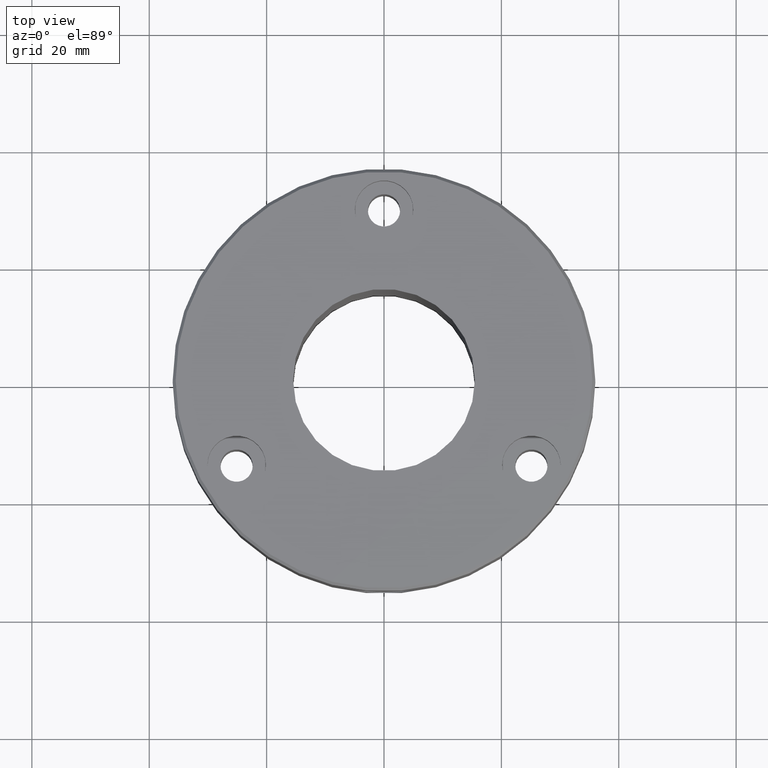
[diagram: clean part render]
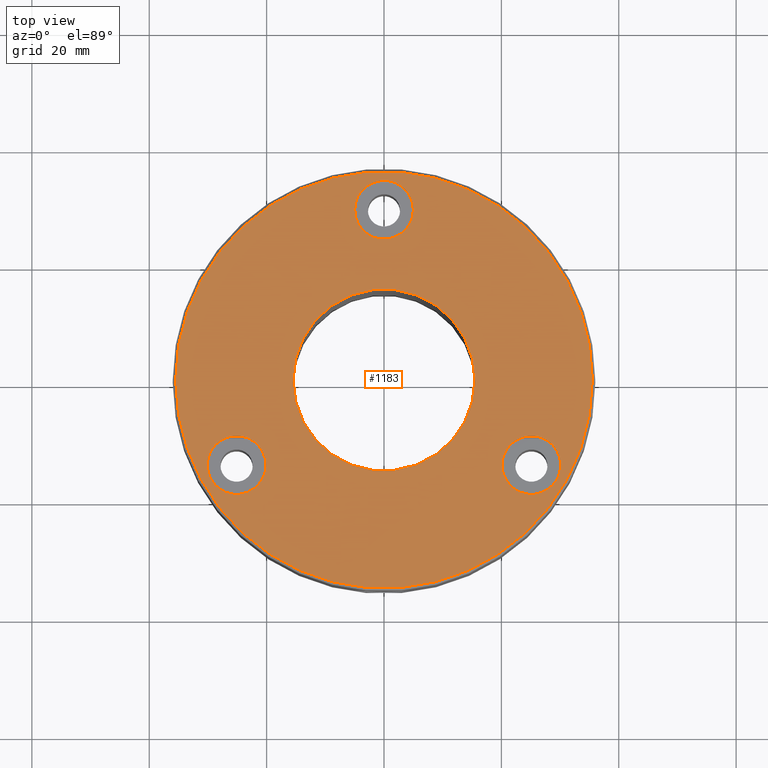
[diagram: same view with one face highlighted and labeled with its STEP entity id]
A machine part, top view. The second image highlights one B-rep face of the part: STEP entity #1183.
In plain terms, the highlighted planar face has unit normal (0, -0, 1).
Its self-contained STEP definition (entity closure, byte-faithful):
#1 = EDGE_CURVE ( 'NONE', #161, #181, #376, .T. ) ;
#15 = DIRECTION ( 'NONE',  ( -1.000000000000000000, 0.000000000000000000, 0.000000000000000000 ) ) ;
#18 = VERTEX_POINT ( 'NONE', #951 ) ;
#22 = CARTESIAN_POINT ( 'NONE',  ( 15.50000000000000000, 1.898202538678397557E-15, 0.000000000000000000 ) ) ;
#58 = DIRECTION ( 'NONE',  ( -0.000000000000000000, -0.000000000000000000, 1.000000000000000000 ) ) ;
#61 = DIRECTION ( 'NONE',  ( -0.000000000000000000, -0.000000000000000000, 1.000000000000000000 ) ) ;
#69 = CIRCLE ( 'NONE', #629, 15.50000000000000000 ) ;
#73 = VERTEX_POINT ( 'NONE', #799 ) ;
#75 = EDGE_LOOP ( 'NONE', ( #661, #995 ) ) ;
#80 = FACE_OUTER_BOUND ( 'NONE', #898, .T. ) ;
#94 = EDGE_CURVE ( 'NONE', #1211, #73, #397, .T. ) ;
#95 = EDGE_LOOP ( 'NONE', ( #369, #777 ) ) ;
#109 = FACE_BOUND ( 'NONE', #75, .T. ) ;
#142 = EDGE_CURVE ( 'NONE', #1227, #183, #69, .T. ) ;
#146 = DIRECTION ( 'NONE',  ( -0.000000000000000000, -0.000000000000000000, 1.000000000000000000 ) ) ;
#161 = VERTEX_POINT ( 'NONE', #991 ) ;
#163 = CARTESIAN_POINT ( 'NONE',  ( 25.11473670974865868, -14.50000000000011013, 0.000000000000000000 ) ) ;
#173 = AXIS2_PLACEMENT_3D ( 'NONE', #266, #146, #935 ) ;
#176 = AXIS2_PLACEMENT_3D ( 'NONE', #387, #368, #1155 ) ;
#178 = FACE_BOUND ( 'NONE', #601, .T. ) ;
#181 = VERTEX_POINT ( 'NONE', #868 ) ;
#183 = VERTEX_POINT ( 'NONE', #22 ) ;
#196 = ORIENTED_EDGE ( 'NONE', *, *, #731, .F. ) ;
#234 = EDGE_CURVE ( 'NONE', #929, #18, #1038, .T. ) ;
#264 = CARTESIAN_POINT ( 'NONE',  ( -35.50000000000001421, 0.000000000000000000, 0.000000000000000000 ) ) ;
#266 = CARTESIAN_POINT ( 'NONE',  ( -25.11473670974875105, -14.49999999999994316, 0.000000000000000000 ) ) ;
#292 = AXIS2_PLACEMENT_3D ( 'NONE', #702, #522, #802 ) ;
#303 = DIRECTION ( 'NONE',  ( 0.000000000000000000, 0.000000000000000000, -1.000000000000000000 ) ) ;
#310 = CARTESIAN_POINT ( 'NONE',  ( 25.11473670974865868, -14.50000000000011013, 0.000000000000000000 ) ) ;
#322 = DIRECTION ( 'NONE',  ( -0.000000000000000000, -0.000000000000000000, 1.000000000000000000 ) ) ;
#353 = CIRCLE ( 'NONE', #173, 5.000000000000000888 ) ;
#368 = DIRECTION ( 'NONE',  ( 0.000000000000000000, -0.000000000000000000, 1.000000000000000000 ) ) ;
#369 = ORIENTED_EDGE ( 'NONE', *, *, #1156, .F. ) ;
#373 = DIRECTION ( 'NONE',  ( -0.000000000000000000, -0.000000000000000000, 1.000000000000000000 ) ) ;
#376 = CIRCLE ( 'NONE', #676, 5.000000000000000888 ) ;
#387 = CARTESIAN_POINT ( 'NONE',  ( 0.000000000000000000, 0.000000000000000000, 0.000000000000000000 ) ) ;
#394 = PLANE ( 'NONE',  #176 ) ;
#397 = CIRCLE ( 'NONE', #770, 5.000000000000000888 ) ;
#432 = AXIS2_PLACEMENT_3D ( 'NONE', #1036, #639, #1109 ) ;
#446 = CARTESIAN_POINT ( 'NONE',  ( 0.000000000000000000, 0.000000000000000000, 0.000000000000000000 ) ) ;
#451 = DIRECTION ( 'NONE',  ( 1.000000000000000000, 0.000000000000000000, 0.000000000000000000 ) ) ;
#514 = ORIENTED_EDGE ( 'NONE', *, *, #1, .F. ) ;
#522 = DIRECTION ( 'NONE',  ( 0.000000000000000000, 0.000000000000000000, -1.000000000000000000 ) ) ;
#545 = CARTESIAN_POINT ( 'NONE',  ( 0.000000000000000000, 29.00000000000000000, 0.000000000000000000 ) ) ;
#547 = DIRECTION ( 'NONE',  ( 1.000000000000000000, 0.000000000000000000, 0.000000000000000000 ) ) ;
#563 = DIRECTION ( 'NONE',  ( 1.000000000000000000, 0.000000000000000000, 0.000000000000000000 ) ) ;
#566 = ORIENTED_EDGE ( 'NONE', *, *, #1192, .T. ) ;
#584 = EDGE_CURVE ( 'NONE', #183, #1227, #1246, .T. ) ;
#597 = CARTESIAN_POINT ( 'NONE',  ( 0.000000000000000000, 0.000000000000000000, 0.000000000000000000 ) ) ;
#601 = EDGE_LOOP ( 'NONE', ( #196, #514 ) ) ;
#608 = EDGE_LOOP ( 'NONE', ( #632, #1237 ) ) ;
#617 = AXIS2_PLACEMENT_3D ( 'NONE', #545, #61, #451 ) ;
#629 = AXIS2_PLACEMENT_3D ( 'NONE', #597, #303, #15 ) ;
#632 = ORIENTED_EDGE ( 'NONE', *, *, #142, .T. ) ;
#639 = DIRECTION ( 'NONE',  ( -0.000000000000000000, -0.000000000000000000, 1.000000000000000000 ) ) ;
#661 = ORIENTED_EDGE ( 'NONE', *, *, #803, .F. ) ;
#672 = FACE_BOUND ( 'NONE', #608, .T. ) ;
#676 = AXIS2_PLACEMENT_3D ( 'NONE', #1240, #373, #563 ) ;
#683 = CARTESIAN_POINT ( 'NONE',  ( 20.11473670974865513, -14.50000000000011013, 0.000000000000000000 ) ) ;
#702 = CARTESIAN_POINT ( 'NONE',  ( 0.000000000000000000, 0.000000000000000000, 0.000000000000000000 ) ) ;
#731 = EDGE_CURVE ( 'NONE', #181, #161, #353, .T. ) ;
#734 = AXIS2_PLACEMENT_3D ( 'NONE', #163, #58, #547 ) ;
#751 = EDGE_CURVE ( 'NONE', #1093, #937, #1060, .T. ) ;
#753 = ORIENTED_EDGE ( 'NONE', *, *, #751, .T. ) ;
#764 = FACE_BOUND ( 'NONE', #95, .T. ) ;
#769 = DIRECTION ( 'NONE',  ( 1.000000000000000000, 0.000000000000000000, 0.000000000000000000 ) ) ;
#770 = AXIS2_PLACEMENT_3D ( 'NONE', #310, #322, #1083 ) ;
#775 = CIRCLE ( 'NONE', #617, 5.000000000000000888 ) ;
#777 = ORIENTED_EDGE ( 'NONE', *, *, #234, .F. ) ;
#779 = CARTESIAN_POINT ( 'NONE',  ( -15.50000000000000000, 0.000000000000000000, 0.000000000000000000 ) ) ;
#799 = CARTESIAN_POINT ( 'NONE',  ( 30.11473670974865868, -14.50000000000011013, 0.000000000000000000 ) ) ;
#802 = DIRECTION ( 'NONE',  ( -1.000000000000000000, 0.000000000000000000, 0.000000000000000000 ) ) ;
#803 = EDGE_CURVE ( 'NONE', #73, #1211, #931, .T. ) ;
#819 = DIRECTION ( 'NONE',  ( -0.000000000000000000, -0.000000000000000000, 1.000000000000000000 ) ) ;
#868 = CARTESIAN_POINT ( 'NONE',  ( -20.11473670974875105, -14.49999999999994316, 0.000000000000000000 ) ) ;
#898 = EDGE_LOOP ( 'NONE', ( #753, #566 ) ) ;
#912 = DIRECTION ( 'NONE',  ( 1.000000000000000000, 0.000000000000000000, 0.000000000000000000 ) ) ;
#929 = VERTEX_POINT ( 'NONE', #993 ) ;
#931 = CIRCLE ( 'NONE', #734, 5.000000000000000888 ) ;
#935 = DIRECTION ( 'NONE',  ( 1.000000000000000000, 0.000000000000000000, 0.000000000000000000 ) ) ;
#937 = VERTEX_POINT ( 'NONE', #982 ) ;
#944 = DIRECTION ( 'NONE',  ( -0.000000000000000000, -0.000000000000000000, 1.000000000000000000 ) ) ;
#951 = CARTESIAN_POINT ( 'NONE',  ( 5.000000000000000888, 29.00000000000000000, 0.000000000000000000 ) ) ;
#980 = CIRCLE ( 'NONE', #1140, 35.50000000000001421 ) ;
#982 = CARTESIAN_POINT ( 'NONE',  ( 35.50000000000001421, 4.378112306951788646E-15, 0.000000000000000000 ) ) ;
#991 = CARTESIAN_POINT ( 'NONE',  ( -30.11473670974875105, -14.49999999999994316, 0.000000000000000000 ) ) ;
#993 = CARTESIAN_POINT ( 'NONE',  ( -5.000000000000000888, 29.00000000000000000, 0.000000000000000000 ) ) ;
#995 = ORIENTED_EDGE ( 'NONE', *, *, #94, .F. ) ;
#1036 = CARTESIAN_POINT ( 'NONE',  ( 0.000000000000000000, 29.00000000000000000, 0.000000000000000000 ) ) ;
#1038 = CIRCLE ( 'NONE', #432, 5.000000000000000888 ) ;
#1060 = CIRCLE ( 'NONE', #1079, 35.50000000000001421 ) ;
#1079 = AXIS2_PLACEMENT_3D ( 'NONE', #446, #819, #912 ) ;
#1083 = DIRECTION ( 'NONE',  ( 1.000000000000000000, 0.000000000000000000, 0.000000000000000000 ) ) ;
#1093 = VERTEX_POINT ( 'NONE', #264 ) ;
#1109 = DIRECTION ( 'NONE',  ( 1.000000000000000000, 0.000000000000000000, 0.000000000000000000 ) ) ;
#1139 = CARTESIAN_POINT ( 'NONE',  ( 0.000000000000000000, 0.000000000000000000, 0.000000000000000000 ) ) ;
#1140 = AXIS2_PLACEMENT_3D ( 'NONE', #1139, #944, #769 ) ;
#1155 = DIRECTION ( 'NONE',  ( 1.000000000000000000, 0.000000000000000000, 0.000000000000000000 ) ) ;
#1156 = EDGE_CURVE ( 'NONE', #18, #929, #775, .T. ) ;
#1183 = ADVANCED_FACE ( 'NONE', ( #178, #109, #764, #672, #80 ), #394, .T. ) ;
#1192 = EDGE_CURVE ( 'NONE', #937, #1093, #980, .T. ) ;
#1211 = VERTEX_POINT ( 'NONE', #683 ) ;
#1227 = VERTEX_POINT ( 'NONE', #779 ) ;
#1237 = ORIENTED_EDGE ( 'NONE', *, *, #584, .T. ) ;
#1240 = CARTESIAN_POINT ( 'NONE',  ( -25.11473670974875105, -14.49999999999994316, 0.000000000000000000 ) ) ;
#1246 = CIRCLE ( 'NONE', #292, 15.50000000000000000 ) ;